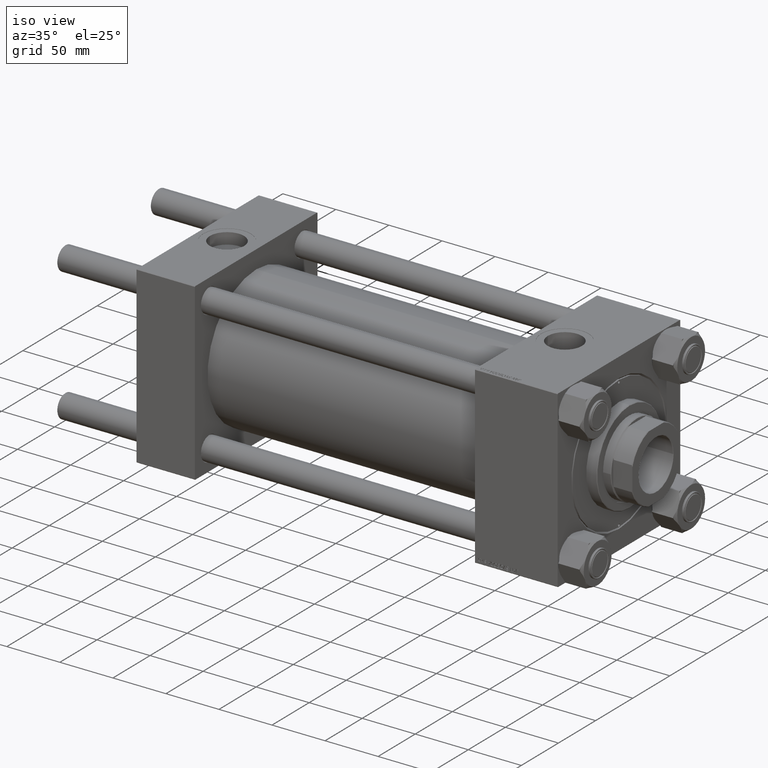
[diagram: clean part render]
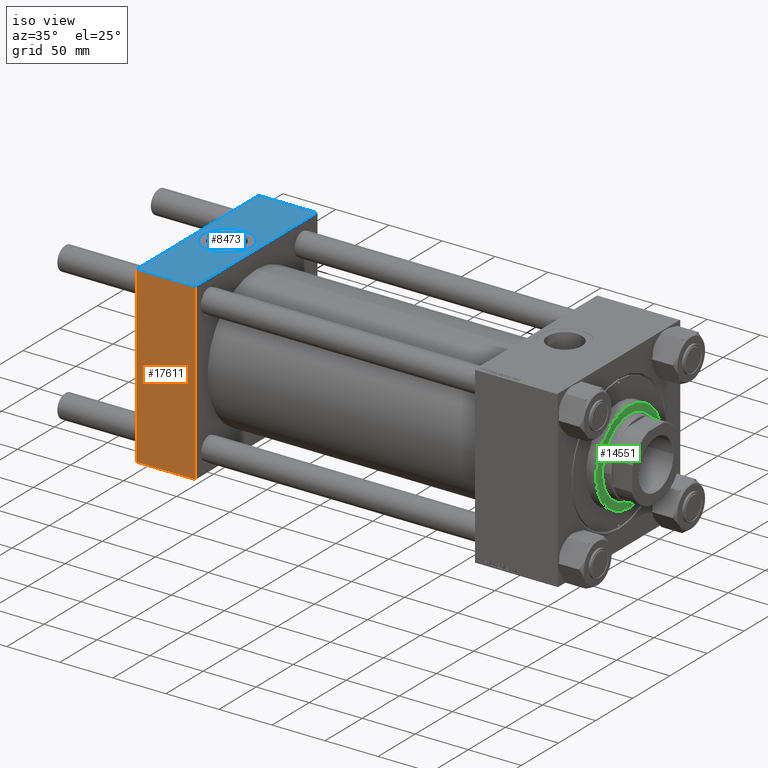
[diagram: same view with three faces highlighted in distinct colors, each labeled with its STEP entity id]
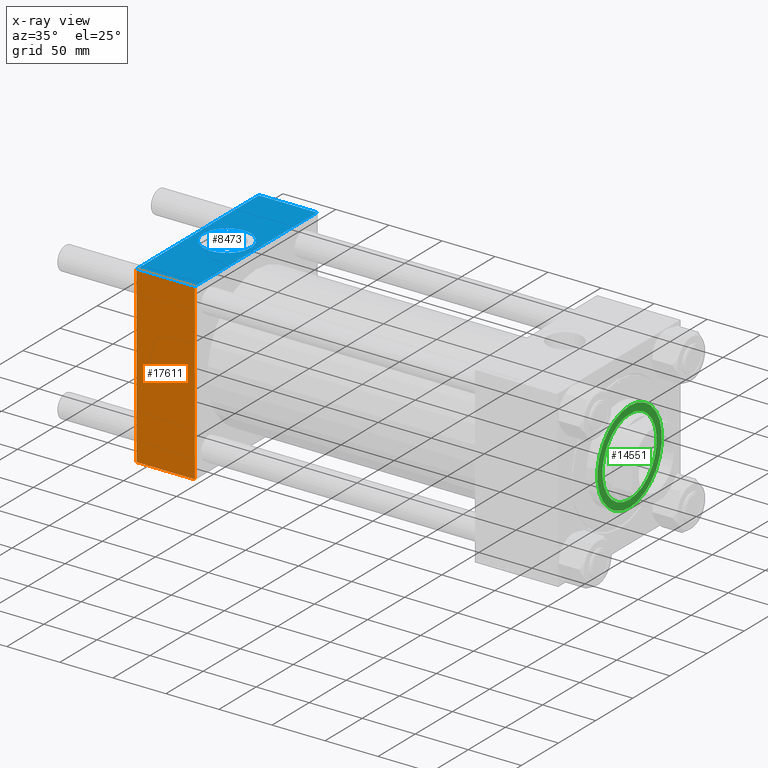
[diagram: x-ray of the same camera — body ghosted, the three highlighted faces saturated]
A machine part, iso view with three faces highlighted in distinct colors.
The next image is the same camera in x-ray (body ghosted, the three faces saturated) — at least one of them is partly hidden behind the body in this view.
Their STEP definitions:

[orange] entity #17611 — the highlighted planar face has unit normal (0, 1, -0).
#1912 = CARTESIAN_POINT ( 'NONE',  ( 0.000000000000000000, -82.49999999999997158, 82.00000000000001421 ) ) ;
#5819 = DIRECTION ( 'NONE',  ( 0.000000000000000000, -1.682156097916903588E-16, -1.000000000000000000 ) ) ;
#8019 = VERTEX_POINT ( 'NONE', #43905 ) ;
#9067 = DIRECTION ( 'NONE',  ( -1.000000000000000000, 0.000000000000000000, 0.000000000000000000 ) ) ;
#10752 = ORIENTED_EDGE ( 'NONE', *, *, #43978, .T. ) ;
#11652 = EDGE_CURVE ( 'NONE', #8019, #23760, #25391, .T. ) ;
#12841 = CARTESIAN_POINT ( 'NONE',  ( 55.00000000000000000, -82.50000000000000000, -81.99999999999998579 ) ) ;
#13984 = LINE ( 'NONE', #47941, #43933 ) ;
#17371 = VECTOR ( 'NONE', #48783, 1000.000000000000000 ) ;
#17611 = ADVANCED_FACE ( 'NONE', ( #20247 ), #44221, .F. ) ;
#17657 = LINE ( 'NONE', #12841, #17371 ) ;
#18723 = CARTESIAN_POINT ( 'NONE',  ( 0.000000000000000000, -82.50000000000000000, -81.99999999999998579 ) ) ;
#20247 = FACE_OUTER_BOUND ( 'NONE', #22980, .T. ) ;
#22980 = EDGE_LOOP ( 'NONE', ( #43244, #10752, #47191, #45289 ) ) ;
#23760 = VERTEX_POINT ( 'NONE', #1912 ) ;
#23826 = CARTESIAN_POINT ( 'NONE',  ( 55.00000000000000000, -82.49999999999997158, 82.50000000000001421 ) ) ;
#25391 = LINE ( 'NONE', #40436, #42377 ) ;
#26879 = VERTEX_POINT ( 'NONE', #18723 ) ;
#29790 = CARTESIAN_POINT ( 'NONE',  ( 55.00000000000000000, -82.50000000000000000, -81.99999999999998579 ) ) ;
#30210 = EDGE_CURVE ( 'NONE', #8019, #37254, #13984, .T. ) ;
#32028 = LINE ( 'NONE', #43231, #40961 ) ;
#32252 = DIRECTION ( 'NONE',  ( 0.000000000000000000, 1.682156097916903588E-16, 1.000000000000000000 ) ) ;
#33656 = AXIS2_PLACEMENT_3D ( 'NONE', #23826, #36323, #32252 ) ;
#36106 = DIRECTION ( 'NONE',  ( 0.000000000000000000, -1.682156097916903588E-16, -1.000000000000000000 ) ) ;
#36323 = DIRECTION ( 'NONE',  ( 0.000000000000000000, 1.000000000000000000, -1.682156097916903588E-16 ) ) ;
#37254 = VERTEX_POINT ( 'NONE', #29790 ) ;
#40436 = CARTESIAN_POINT ( 'NONE',  ( 55.00000000000000000, -82.49999999999997158, 82.00000000000001421 ) ) ;
#40961 = VECTOR ( 'NONE', #36106, 1000.000000000000000 ) ;
#42339 = EDGE_CURVE ( 'NONE', #23760, #26879, #32028, .T. ) ;
#42377 = VECTOR ( 'NONE', #9067, 1000.000000000000000 ) ;
#43231 = CARTESIAN_POINT ( 'NONE',  ( 0.000000000000000000, -82.49999999999997158, 82.50000000000001421 ) ) ;
#43244 = ORIENTED_EDGE ( 'NONE', *, *, #42339, .T. ) ;
#43905 = CARTESIAN_POINT ( 'NONE',  ( 55.00000000000000000, -82.49999999999997158, 82.00000000000001421 ) ) ;
#43933 = VECTOR ( 'NONE', #5819, 1000.000000000000000 ) ;
#43978 = EDGE_CURVE ( 'NONE', #26879, #37254, #17657, .T. ) ;
#44221 = PLANE ( 'NONE',  #33656 ) ;
#45289 = ORIENTED_EDGE ( 'NONE', *, *, #11652, .T. ) ;
#47191 = ORIENTED_EDGE ( 'NONE', *, *, #30210, .F. ) ;
#47941 = CARTESIAN_POINT ( 'NONE',  ( 55.00000000000000000, -82.49999999999997158, 82.50000000000001421 ) ) ;
#48783 = DIRECTION ( 'NONE',  ( 1.000000000000000000, 0.000000000000000000, 0.000000000000000000 ) ) ;

[blue] entity #8473 — the highlighted planar face has unit normal (0, 0, -1).
#223 = VECTOR ( 'NONE', #31567, 1000.000000000000000 ) ;
#354 = ORIENTED_EDGE ( 'NONE', *, *, #1503, .F. ) ;
#1503 = EDGE_CURVE ( 'NONE', #22608, #12530, #38138, .T. ) ;
#2113 = DIRECTION ( 'NONE',  ( 0.000000000000000000, -1.000000000000000000, -8.410780489584519171E-17 ) ) ;
#2644 = DIRECTION ( 'NONE',  ( 1.000000000000000000, 0.000000000000000000, 0.000000000000000000 ) ) ;
#4770 = EDGE_CURVE ( 'NONE', #25037, #45925, #25850, .T. ) ;
#5571 = ORIENTED_EDGE ( 'NONE', *, *, #42559, .T. ) ;
#6305 = PLANE ( 'NONE',  #33359 ) ;
#6480 = VECTOR ( 'NONE', #2113, 1000.000000000000000 ) ;
#6822 = CARTESIAN_POINT ( 'NONE',  ( 55.00000000000000000, 82.50000000000002842, 82.50000000000002842 ) ) ;
#8473 = ADVANCED_FACE ( 'NONE', ( #48914, #13971 ), #6305, .F. ) ;
#9925 = CARTESIAN_POINT ( 'NONE',  ( 0.000000000000000000, 82.00000000000005684, 82.50000000000002842 ) ) ;
#10912 = EDGE_LOOP ( 'NONE', ( #21557, #354 ) ) ;
#12048 = AXIS2_PLACEMENT_3D ( 'NONE', #22882, #23137, #38434 ) ;
#12530 = VERTEX_POINT ( 'NONE', #50003 ) ;
#12711 = VECTOR ( 'NONE', #25247, 1000.000000000000000 ) ;
#13971 = FACE_OUTER_BOUND ( 'NONE', #24223, .T. ) ;
#14010 = LINE ( 'NONE', #9925, #12711 ) ;
#14638 = DIRECTION ( 'NONE',  ( 1.000000000000000000, 0.000000000000000000, 0.000000000000000000 ) ) ;
#14906 = AXIS2_PLACEMENT_3D ( 'NONE', #26128, #41663, #14638 ) ;
#16353 = VERTEX_POINT ( 'NONE', #29529 ) ;
#20593 = VECTOR ( 'NONE', #2644, 1000.000000000000000 ) ;
#21557 = ORIENTED_EDGE ( 'NONE', *, *, #42622, .F. ) ;
#22608 = VERTEX_POINT ( 'NONE', #50105 ) ;
#22639 = DIRECTION ( 'NONE',  ( 0.000000000000000000, 8.410780489584519171E-17, -1.000000000000000000 ) ) ;
#22882 = CARTESIAN_POINT ( 'NONE',  ( 27.50000000000000000, -8.673617379884037050E-15, 82.50000000000001421 ) ) ;
#23137 = DIRECTION ( 'NONE',  ( 0.000000000000000000, 0.000000000000000000, 1.000000000000000000 ) ) ;
#23659 = CARTESIAN_POINT ( 'NONE',  ( 0.000000000000000000, 82.50000000000002842, 82.50000000000002842 ) ) ;
#24160 = LINE ( 'NONE', #23659, #223 ) ;
#24223 = EDGE_LOOP ( 'NONE', ( #43530, #5571, #42105, #47760 ) ) ;
#25037 = VERTEX_POINT ( 'NONE', #37320 ) ;
#25247 = DIRECTION ( 'NONE',  ( -1.000000000000000000, 0.000000000000000000, 0.000000000000000000 ) ) ;
#25850 = LINE ( 'NONE', #34016, #6480 ) ;
#26128 = CARTESIAN_POINT ( 'NONE',  ( 27.50000000000000000, -8.673617379884037050E-15, 82.50000000000001421 ) ) ;
#26476 = DIRECTION ( 'NONE',  ( 0.000000000000000000, 1.000000000000000000, 8.410780489584519171E-17 ) ) ;
#29186 = CARTESIAN_POINT ( 'NONE',  ( 55.00000000000000000, -81.99999999999997158, 82.50000000000001421 ) ) ;
#29529 = CARTESIAN_POINT ( 'NONE',  ( 0.000000000000000000, 82.00000000000005684, 82.50000000000002842 ) ) ;
#31567 = DIRECTION ( 'NONE',  ( 0.000000000000000000, -1.000000000000000000, -8.410780489584519171E-17 ) ) ;
#32466 = VERTEX_POINT ( 'NONE', #35443 ) ;
#33359 = AXIS2_PLACEMENT_3D ( 'NONE', #6822, #22639, #26476 ) ;
#34016 = CARTESIAN_POINT ( 'NONE',  ( 55.00000000000000000, 82.50000000000002842, 82.50000000000002842 ) ) ;
#34030 = LINE ( 'NONE', #42415, #20593 ) ;
#35443 = CARTESIAN_POINT ( 'NONE',  ( 0.000000000000000000, -81.99999999999997158, 82.50000000000001421 ) ) ;
#36899 = CIRCLE ( 'NONE', #14906, 22.50000000000000355 ) ;
#37320 = CARTESIAN_POINT ( 'NONE',  ( 55.00000000000000000, 82.00000000000005684, 82.50000000000002842 ) ) ;
#38138 = CIRCLE ( 'NONE', #12048, 22.50000000000000355 ) ;
#38434 = DIRECTION ( 'NONE',  ( 1.000000000000000000, 0.000000000000000000, 0.000000000000000000 ) ) ;
#38807 = EDGE_CURVE ( 'NONE', #16353, #32466, #24160, .T. ) ;
#41663 = DIRECTION ( 'NONE',  ( 0.000000000000000000, 0.000000000000000000, 1.000000000000000000 ) ) ;
#42105 = ORIENTED_EDGE ( 'NONE', *, *, #4770, .F. ) ;
#42415 = CARTESIAN_POINT ( 'NONE',  ( 55.00000000000000000, -81.99999999999997158, 82.50000000000001421 ) ) ;
#42559 = EDGE_CURVE ( 'NONE', #32466, #45925, #34030, .T. ) ;
#42622 = EDGE_CURVE ( 'NONE', #12530, #22608, #36899, .T. ) ;
#43530 = ORIENTED_EDGE ( 'NONE', *, *, #38807, .T. ) ;
#45925 = VERTEX_POINT ( 'NONE', #29186 ) ;
#47760 = ORIENTED_EDGE ( 'NONE', *, *, #50122, .T. ) ;
#48914 = FACE_BOUND ( 'NONE', #10912, .T. ) ;
#50003 = CARTESIAN_POINT ( 'NONE',  ( 50.00000000000000000, -8.673617379884037050E-15, 82.50000000000001421 ) ) ;
#50105 = CARTESIAN_POINT ( 'NONE',  ( 4.999999999999993783, -5.918162081802491483E-15, 82.50000000000001421 ) ) ;
#50122 = EDGE_CURVE ( 'NONE', #25037, #16353, #14010, .T. ) ;

[green] entity #14551 — the highlighted planar face has unit normal (1, 0, -0).
#1229 = CARTESIAN_POINT ( 'NONE',  ( 43.50000000000001421, 5.357829746269670620E-15, 38.69999999999999574 ) ) ;
#1432 = DIRECTION ( 'NONE',  ( 1.000000000000000000, 0.000000000000000000, 0.000000000000000000 ) ) ;
#2667 = CIRCLE ( 'NONE', #15701, 36.50000000000000000 ) ;
#3384 = CARTESIAN_POINT ( 'NONE',  ( 0.000000000000000000, 0.000000000000000000, 38.69999999999999574 ) ) ;
#4504 = CARTESIAN_POINT ( 'NONE',  ( 0.000000000000000000, 0.000000000000000000, 38.69999999999999574 ) ) ;
#5272 = DIRECTION ( 'NONE',  ( 1.000000000000000000, 0.000000000000000000, 0.000000000000000000 ) ) ;
#6910 = EDGE_LOOP ( 'NONE', ( #39196, #45610 ) ) ;
#8423 = DIRECTION ( 'NONE',  ( 0.000000000000000000, 0.000000000000000000, 1.000000000000000000 ) ) ;
#8842 = DIRECTION ( 'NONE',  ( 0.000000000000000000, 0.000000000000000000, 1.000000000000000000 ) ) ;
#10314 = EDGE_CURVE ( 'NONE', #11454, #42385, #12188, .T. ) ;
#10390 = AXIS2_PLACEMENT_3D ( 'NONE', #3384, #14628, #45761 ) ;
#11454 = VERTEX_POINT ( 'NONE', #1229 ) ;
#12188 = CIRCLE ( 'NONE', #40696, 43.50000000000001421 ) ;
#12253 = CARTESIAN_POINT ( 'NONE',  ( 36.50000000000000000, 0.000000000000000000, 38.69999999999999574 ) ) ;
#12258 = DIRECTION ( 'NONE',  ( 1.000000000000000000, 0.000000000000000000, 0.000000000000000000 ) ) ;
#13770 = EDGE_CURVE ( 'NONE', #42385, #11454, #38375, .T. ) ;
#14551 = ADVANCED_FACE ( 'NONE', ( #43627, #24234 ), #43870, .T. ) ;
#14628 = DIRECTION ( 'NONE',  ( 0.000000000000000000, 0.000000000000000000, 1.000000000000000000 ) ) ;
#15701 = AXIS2_PLACEMENT_3D ( 'NONE', #4504, #8842, #1432 ) ;
#15821 = DIRECTION ( 'NONE',  ( 0.000000000000000000, 0.000000000000000000, 1.000000000000000000 ) ) ;
#17461 = ORIENTED_EDGE ( 'NONE', *, *, #38773, .F. ) ;
#17698 = CIRCLE ( 'NONE', #10390, 36.50000000000000000 ) ;
#17732 = VERTEX_POINT ( 'NONE', #12253 ) ;
#20163 = DIRECTION ( 'NONE',  ( 0.000000000000000000, 0.000000000000000000, 1.000000000000000000 ) ) ;
#21280 = CARTESIAN_POINT ( 'NONE',  ( -43.50000000000001421, 0.000000000000000000, 38.69999999999999574 ) ) ;
#22404 = VERTEX_POINT ( 'NONE', #32800 ) ;
#24234 = FACE_OUTER_BOUND ( 'NONE', #6910, .T. ) ;
#24491 = CARTESIAN_POINT ( 'NONE',  ( 0.000000000000000000, 0.000000000000000000, 38.69999999999999574 ) ) ;
#26114 = EDGE_CURVE ( 'NONE', #22404, #17732, #17698, .T. ) ;
#28760 = CARTESIAN_POINT ( 'NONE',  ( 0.000000000000000000, 0.000000000000000000, 38.69999999999999574 ) ) ;
#31074 = AXIS2_PLACEMENT_3D ( 'NONE', #28760, #15821, #5272 ) ;
#32800 = CARTESIAN_POINT ( 'NONE',  ( -36.50000000000000000, 4.469960816887838430E-15, 38.69999999999999574 ) ) ;
#37914 = EDGE_LOOP ( 'NONE', ( #17461, #49668 ) ) ;
#38375 = CIRCLE ( 'NONE', #31074, 43.50000000000001421 ) ;
#38773 = EDGE_CURVE ( 'NONE', #17732, #22404, #2667, .T. ) ;
#39196 = ORIENTED_EDGE ( 'NONE', *, *, #13770, .T. ) ;
#39538 = DIRECTION ( 'NONE',  ( 1.000000000000000000, 0.000000000000000000, -0.000000000000000000 ) ) ;
#40696 = AXIS2_PLACEMENT_3D ( 'NONE', #47214, #20163, #12258 ) ;
#42385 = VERTEX_POINT ( 'NONE', #21280 ) ;
#43627 = FACE_BOUND ( 'NONE', #37914, .T. ) ;
#43870 = PLANE ( 'NONE',  #47383 ) ;
#45610 = ORIENTED_EDGE ( 'NONE', *, *, #10314, .T. ) ;
#45761 = DIRECTION ( 'NONE',  ( 1.000000000000000000, 0.000000000000000000, 0.000000000000000000 ) ) ;
#47214 = CARTESIAN_POINT ( 'NONE',  ( 0.000000000000000000, 0.000000000000000000, 38.69999999999999574 ) ) ;
#47383 = AXIS2_PLACEMENT_3D ( 'NONE', #24491, #8423, #39538 ) ;
#49668 = ORIENTED_EDGE ( 'NONE', *, *, #26114, .F. ) ;